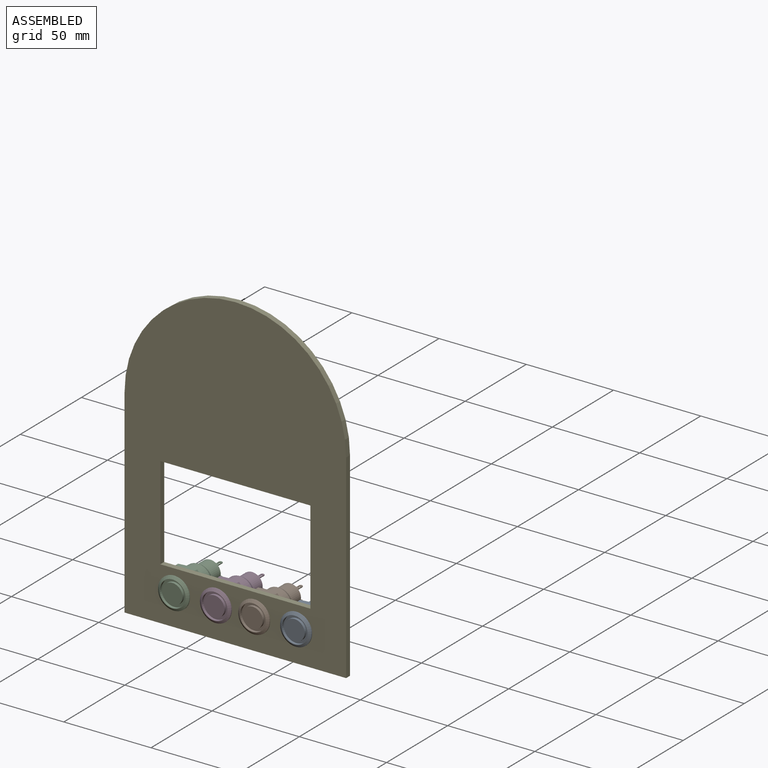
[diagram: assembled view]
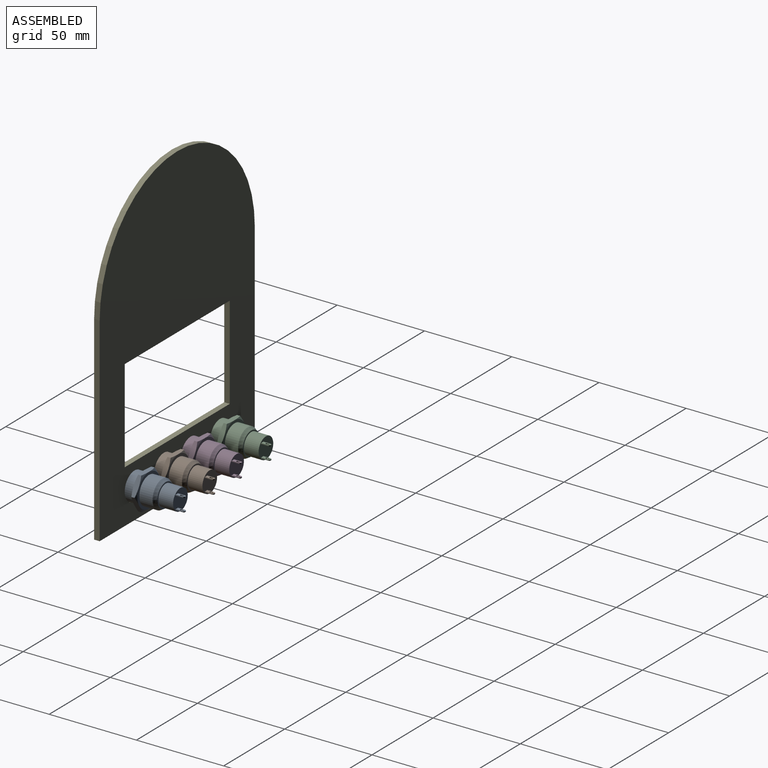
[diagram: assembled view, second angle]
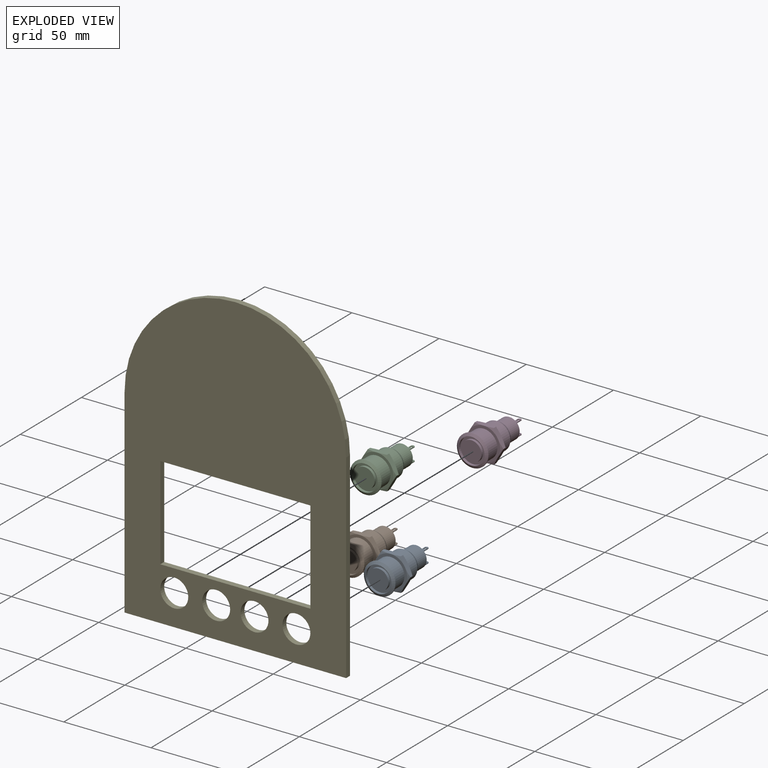
[diagram: exploded view]
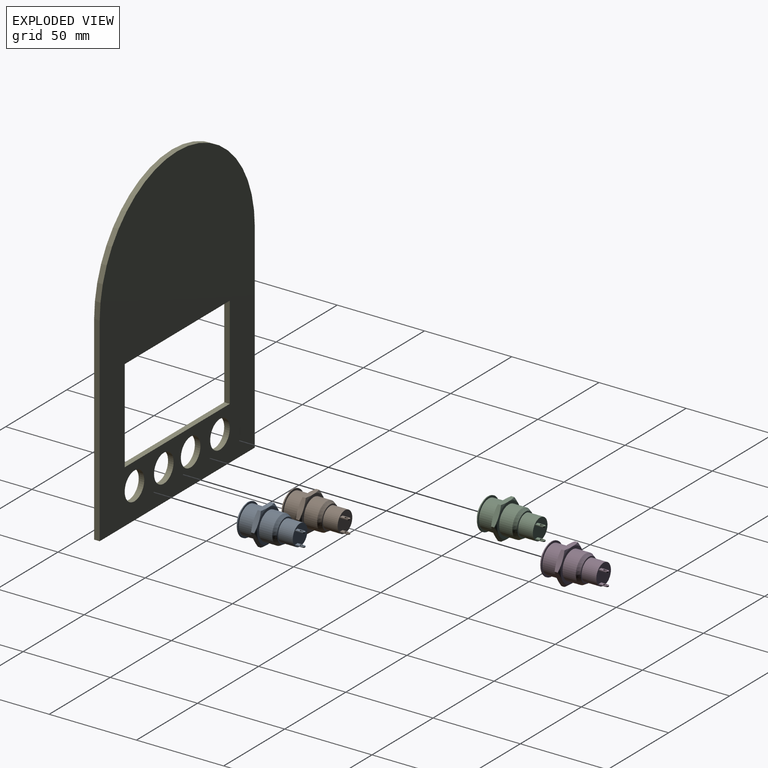
[diagram: exploded view, second angle]
ASSEMBLY  parts=5 mates=4
PART A: 52 faces, bbox 21.9x36x21.9 mm
  f0: cylinder r=7.25mm len=14.5mm, axis (0,1,0), area 68.3mm2, adj f1,f51
  f1: plane 15.14x15.14mm, normal (0,1,0), area 15mm2, adj f0,f3
  f2: plane 11.5x11.5mm, normal (0,1,0), area 103.9mm2, adj f50
  f3: cone r=8.29mm half-angle=55deg, axis (0,-1,0), area 90.8mm2, adj f1,f4
  f4: cylinder r=9mm len=18mm, axis (0,-1,0), area 28.3mm2, adj f3,f5
  f5: plane 18x18mm, normal (0,-1,0), area 56.7mm2, adj f4,f6
  f6: cylinder r=7.93mm len=15.87mm, axis (0,-1,0), area 423.8mm2, adj f5,f8
  f7: cylinder r=7.93mm len=15.87mm, axis (0,-1,0), area 378.9mm2, adj f9,f28
  f8: plane 19x19mm, normal (0,1,0), area 85.7mm2, adj f6,f16,f17,f18,f19,f20,f26
  f9: plane 19x19mm, normal (0,-1,0), area 85.7mm2, adj f7,f10,f11,f12,f13,f14,f27
  f10: cone r=10.23mm half-angle=68deg, axis (0,1,0), area 5.2mm2, adj f9,f15,f21
  f11: cone r=10.23mm half-angle=68deg, axis (0,1,0), area 5.2mm2, adj f9,f21,f22
  f12: cone r=10.23mm half-angle=68deg, axis (0,1,0), area 5.2mm2, adj f9,f24,f25
  f13: cone r=10.23mm half-angle=68deg, axis (0,1,0), area 5.2mm2, adj f9,f23,f24
  f14: cone r=10.23mm half-angle=68deg, axis (0,1,0), area 5.2mm2, adj f9,f22,f23
  f15: plane 9.5x5.49mm, normal (-0.87,0,0.5), area 28.4mm2, adj f10,f16,f21,f25,f26,f27
  f16: cone r=10.23mm half-angle=68deg, axis (0,-1,0), area 5.2mm2, adj f8,f15,f21
  f17: cone r=10.23mm half-angle=68deg, axis (0,-1,0), area 5.2mm2, adj f8,f21,f22
  f18: cone r=10.23mm half-angle=68deg, axis (0,-1,0), area 5.2mm2, adj f8,f24,f25
  f19: cone r=10.23mm half-angle=68deg, axis (0,-1,0), area 5.2mm2, adj f8,f23,f24
  f20: cone r=10.23mm half-angle=68deg, axis (0,-1,0), area 5.2mm2, adj f8,f22,f23
  f21: plane 10.97x3mm, normal (0,0,1), area 28.4mm2, adj f10,f11,f15,f16,f17,f22
  f22: plane 9.5x5.49mm, normal (0.87,0,0.5), area 28.4mm2, adj f11,f14,f17,f20,f21,f23
  f23: plane 9.5x5.49mm, normal (0.87,0,-0.5), area 28.4mm2, adj f13,f14,f19,f20,f22,f24
  f24: plane 10.97x3mm, normal (0,0,-1), area 28.4mm2, adj f12,f13,f18,f19,f23,f25
  f25: plane 9.5x5.49mm, normal (-0.87,0,-0.5), area 28.4mm2, adj f12,f15,f18,f24,f26,f27
  f26: cone r=10.23mm half-angle=68deg, axis (0,-1,0), area 5.2mm2, adj f8,f15,f25
  f27: cone r=10.23mm half-angle=68deg, axis (0,1,0), area 5.2mm2, adj f9,f15,f25
  f28: cone r=7.36mm half-angle=30deg, axis (0,1,0), area 106.8mm2, adj f7,f29
  f29: plane 13.56x13.56mm, normal (0,-1,0), area 31.3mm2, adj f28,f30
  f30: cylinder r=6mm len=12mm, axis (0,-1,0), area 316.7mm2, adj f29,f31
  f31: plane 12x12mm, normal (0,-1,0), area 111.1mm2, adj f30,f32,f34,f35,f36,f41,f43,f44
  f32: plane 4x0.5mm, normal (-1,0,0), area 2mm2, adj f31,f33,f34,f36
  f33: cylinder r=1mm len=2mm, axis (0,0,-1), area 1.6mm2, adj f32,f34,f35,f36
  f34: plane 5x2mm, normal (0,0,1), area 7.8mm2, adj f31,f32,f33,f35,f37,f38,f39,f40
  f35: plane 4x0.5mm, normal (1,0,0), area 2mm2, adj f31,f33,f34,f36
  f36: plane 5x2mm, normal (0,0,-1), area 7.8mm2, adj f31,f32,f33,f35,f37,f38,f39,f40
  f37: plane 1x0.5mm, normal (-1,0,0), area 0.5mm2, adj f34,f36,f38,f40
  f38: cylinder r=0.5mm len=1mm, axis (0,0,1), area 0.8mm2, adj f34,f36,f37,f39
  f39: plane 1x0.5mm, normal (1,0,0), area 0.5mm2, adj f34,f36,f38,f40
  f40: cylinder r=0.5mm len=1mm, axis (0,0,-1), area 0.8mm2, adj f34,f36,f37,f39
  f41: plane 4x0.5mm, normal (-1,0,0), area 2mm2, adj f31,f42,f43,f45
  f42: cylinder r=1mm len=2mm, axis (0,0,-1), area 1.6mm2, adj f41,f43,f44,f45
  f43: plane 5x2mm, normal (0,0,1), area 7.8mm2, adj f31,f41,f42,f44,f46,f47,f48,f49
  f44: plane 4x0.5mm, normal (1,0,0), area 2mm2, adj f31,f42,f43,f45
  f45: plane 5x2mm, normal (0,0,-1), area 7.8mm2, adj f31,f41,f42,f44,f46,f47,f48,f49
  f46: plane 1x0.5mm, normal (-1,0,0), area 0.5mm2, adj f43,f45,f47,f49
  f47: cylinder r=0.5mm len=1mm, axis (0,0,1), area 0.8mm2, adj f43,f45,f46,f48
  f48: plane 1x0.5mm, normal (1,0,0), area 0.5mm2, adj f43,f45,f47,f49
  f49: cylinder r=0.5mm len=1mm, axis (0,0,-1), area 0.8mm2, adj f43,f45,f46,f48
  f50: cylinder r=5.75mm len=11.5mm, axis (0,1,0), area 54.2mm2, adj f2,f51
  f51: plane 14.5x14.5mm, normal (0,1,0), area 61.3mm2, adj f0,f50
PART B: same geometry as A
PART C: same geometry as A
PART D: same geometry as A
PART E: 15 faces, bbox 127x177.8x3.2 mm
  f0: plane 177.8x127mm, normal (0,0,1), area 15448.1mm2, adj f1,f2,f3,f4,f5,f6,f7,f8
  f1: plane 114.3x3.18mm, normal (-1,0,0), area 362.9mm2, adj f0,f2,f4,f14
  f2: plane 127x3.18mm, normal (0,-1,0), area 403.2mm2, adj f0,f1,f3,f14
  f3: plane 114.3x3.18mm, normal (1,0,0), area 362.9mm2, adj f0,f2,f4,f14
  f4: cylinder r=63.5mm len=127mm, axis (0,0,-1), area 633.4mm2, adj f0,f1,f3,f14
  f5: cylinder r=8mm len=16mm, axis (0,0,1), area 159.6mm2, adj f0,f13
  f6: plane 53.46x3.18mm, normal (1,0,0), area 169.7mm2, adj f0,f7,f8,f13
  f7: plane 86x3.18mm, normal (0,-1,0), area 273mm2, adj f0,f6,f9,f13
  f8: plane 86x3.18mm, normal (0,1,0), area 273mm2, adj f0,f6,f9,f13
  f9: plane 53.46x3.18mm, normal (-1,0,0), area 169.7mm2, adj f0,f7,f8,f13
  f10: cylinder r=8mm len=16mm, axis (0,0,1), area 159.6mm2, adj f0,f13
  f11: cylinder r=8mm len=16mm, axis (0,0,1), area 159.6mm2, adj f0,f13
  f12: cylinder r=8mm len=16mm, axis (0,0,1), area 159.6mm2, adj f0,f13
  f13: plane 171.45x120.65mm, normal (0,0,-1), area 13721.7mm2, adj f5,f6,f7,f8,f9,f10,f11,f12
  f14: plane 177.8x127mm, normal (0,0,-1), area 1726.4mm2, adj f1,f2,f3,f4,f13
PLACE A rot(axis=(1,0,0),180deg) t=(6.27,-41.43,-7.61)mm
PLACE B rot(axis=(1,0,0),180deg) t=(-17.75,-41.43,-7.61)mm
PLACE C rot(axis=(1,0,0),180deg) t=(-63.73,-41.43,-7.61)mm
PLACE D rot(axis=(1,0,0),180deg) t=(-39.7,-41.43,-7.61)mm
PLACE E rot(axis=(1,0,0),90deg) t=(-28.73,10.87,63.51)mm
MATE fastened D.f0 <-> E.f11  axis (0,1,0) through (-39.7,-39.93,-7.61)mm
MATE fastened B.f0 <-> E.f12  axis (0,1,0) through (-17.75,-39.93,-7.61)mm
MATE fastened A.f0 <-> E.f5  axis (0,1,0) through (6.27,-39.93,-7.61)mm
MATE fastened C.f0 <-> E.f10  axis (0,1,0) through (-63.73,-39.93,-7.61)mm
